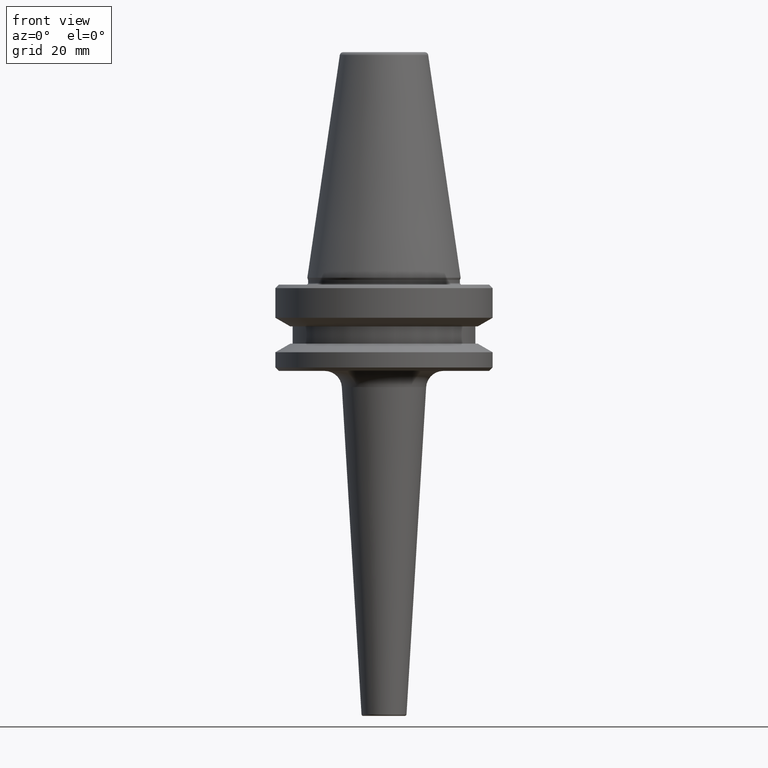
[diagram: clean part render]
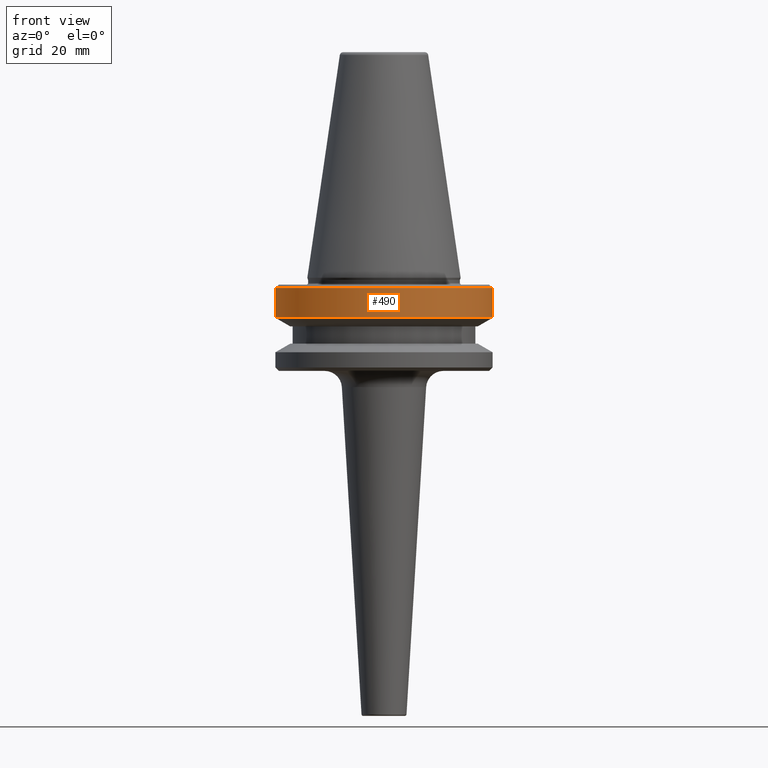
[diagram: same view with one face highlighted and labeled with its STEP entity id]
A machine part, front view. The second image highlights one B-rep face of the part: STEP entity #490.
In plain terms, the highlighted cylindrical surface (partial cylindrical patch) has radius 31.5 mm, axis along (-0, -0, 1).
Its self-contained STEP definition (entity closure, byte-faithful):
#11 = LINE ( 'NONE', #58, #420 ) ;
#20 = CARTESIAN_POINT ( 'NONE',  ( 31.50000000000008500, 0.0000000000000000000, -68.40000000000046000 ) ) ;
#22 = VECTOR ( 'NONE', #913, 1000.000000000000000 ) ;
#46 = LINE ( 'NONE', #868, #22 ) ;
#58 = CARTESIAN_POINT ( 'NONE',  ( -31.50000000000008500, 3.857637417314172900E-015, 6.357346922996331500 ) ) ;
#78 = DIRECTION ( 'NONE',  ( 1.000000000000000000, 0.0000000000000000000, 0.0000000000000000000 ) ) ;
#84 = VERTEX_POINT ( 'NONE', #20 ) ;
#172 = CIRCLE ( 'NONE', #1005, 31.50000000000008500 ) ;
#239 = CYLINDRICAL_SURFACE ( 'NONE', #511, 31.50000000000008500 ) ;
#272 = EDGE_CURVE ( 'NONE', #629, #622, #11, .T. ) ;
#317 = CARTESIAN_POINT ( 'NONE',  ( 0.0000000000000000000, 0.0000000000000000000, -68.40000000000046000 ) ) ;
#344 = DIRECTION ( 'NONE',  ( 1.000000000000000000, 0.0000000000000000000, 0.0000000000000000000 ) ) ;
#348 = VERTEX_POINT ( 'NONE', #816 ) ;
#390 = DIRECTION ( 'NONE',  ( 1.000000000000000000, 0.0000000000000000000, 0.0000000000000000000 ) ) ;
#420 = VECTOR ( 'NONE', #573, 1000.000000000000000 ) ;
#440 = ORIENTED_EDGE ( 'NONE', *, *, #891, .T. ) ;
#490 = ADVANCED_FACE ( 'NONE', ( #725 ), #239, .T. ) ;
#511 = AXIS2_PLACEMENT_3D ( 'NONE', #862, #519, #390 ) ;
#516 = ORIENTED_EDGE ( 'NONE', *, *, #272, .F. ) ;
#519 = DIRECTION ( 'NONE',  ( -0.0000000000000000000, -0.0000000000000000000, 1.000000000000000000 ) ) ;
#570 = DIRECTION ( 'NONE',  ( -0.0000000000000000000, -0.0000000000000000000, 1.000000000000000000 ) ) ;
#573 = DIRECTION ( 'NONE',  ( -0.0000000000000000000, -0.0000000000000000000, 1.000000000000000000 ) ) ;
#593 = CARTESIAN_POINT ( 'NONE',  ( -31.50000000000008500, 3.857637417314172900E-015, -76.99985799368391800 ) ) ;
#622 = VERTEX_POINT ( 'NONE', #678 ) ;
#629 = VERTEX_POINT ( 'NONE', #593 ) ;
#644 = AXIS2_PLACEMENT_3D ( 'NONE', #686, #833, #344 ) ;
#651 = EDGE_CURVE ( 'NONE', #348, #84, #46, .T. ) ;
#678 = CARTESIAN_POINT ( 'NONE',  ( -31.50000000000008500, 3.857637417314172900E-015, -68.40000000000046000 ) ) ;
#682 = EDGE_LOOP ( 'NONE', ( #516, #440, #707, #703 ) ) ;
#686 = CARTESIAN_POINT ( 'NONE',  ( 0.0000000000000000000, 0.0000000000000000000, -76.99985799368391800 ) ) ;
#703 = ORIENTED_EDGE ( 'NONE', *, *, #1024, .F. ) ;
#707 = ORIENTED_EDGE ( 'NONE', *, *, #651, .T. ) ;
#725 = FACE_OUTER_BOUND ( 'NONE', #682, .T. ) ;
#769 = CIRCLE ( 'NONE', #644, 31.50000000000008500 ) ;
#816 = CARTESIAN_POINT ( 'NONE',  ( 31.50000000000008500, 0.0000000000000000000, -76.99985799368391800 ) ) ;
#833 = DIRECTION ( 'NONE',  ( -0.0000000000000000000, -0.0000000000000000000, 1.000000000000000000 ) ) ;
#862 = CARTESIAN_POINT ( 'NONE',  ( 0.0000000000000000000, 0.0000000000000000000, 6.357346922996331500 ) ) ;
#868 = CARTESIAN_POINT ( 'NONE',  ( 31.50000000000008500, 0.0000000000000000000, 6.357346922996331500 ) ) ;
#891 = EDGE_CURVE ( 'NONE', #629, #348, #769, .T. ) ;
#913 = DIRECTION ( 'NONE',  ( -0.0000000000000000000, -0.0000000000000000000, 1.000000000000000000 ) ) ;
#1005 = AXIS2_PLACEMENT_3D ( 'NONE', #317, #570, #78 ) ;
#1024 = EDGE_CURVE ( 'NONE', #622, #84, #172, .T. ) ;